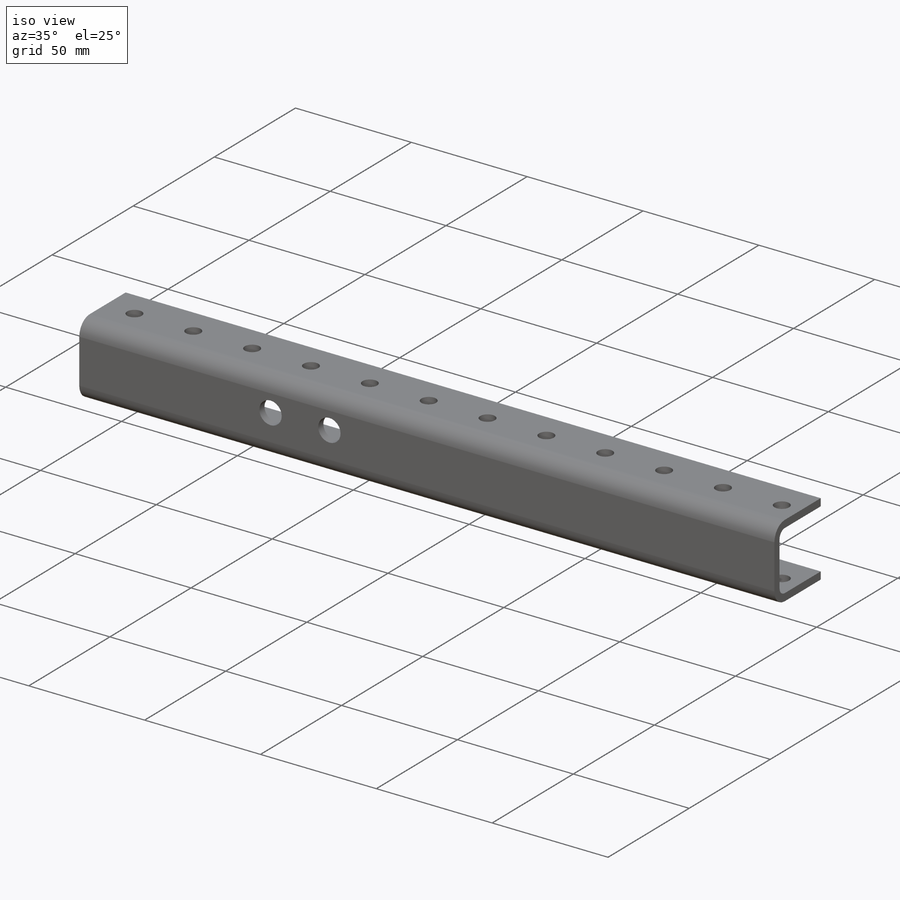
[diagram: iso view]
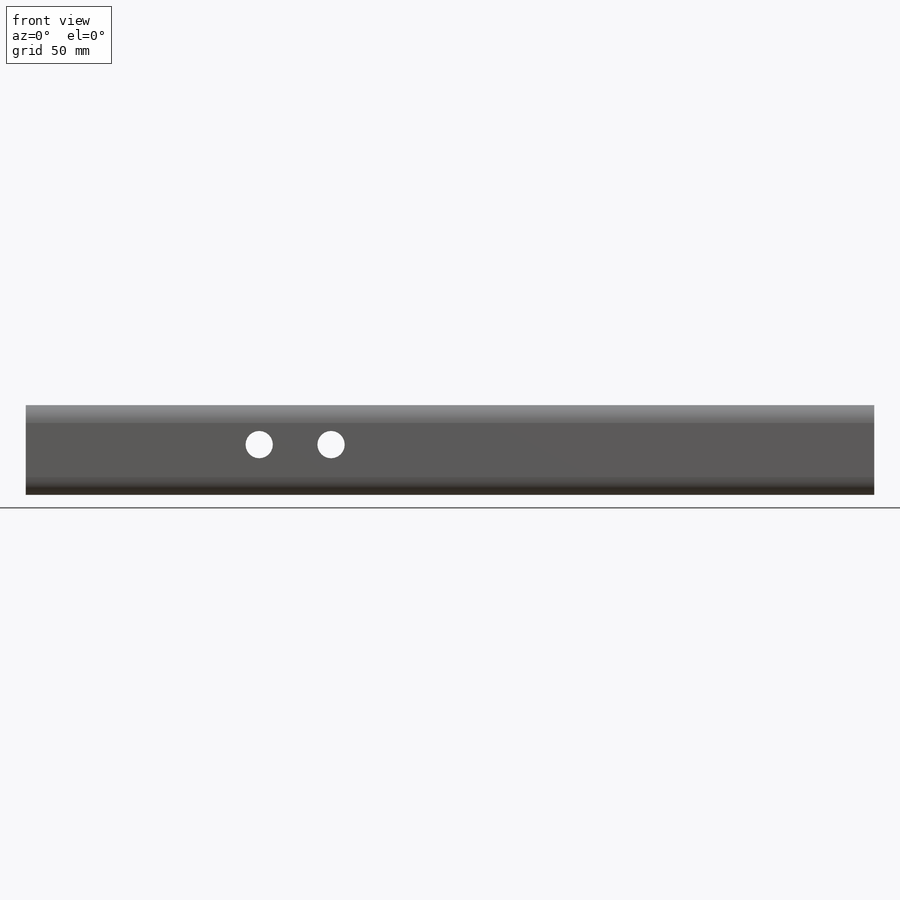
[diagram: front view]
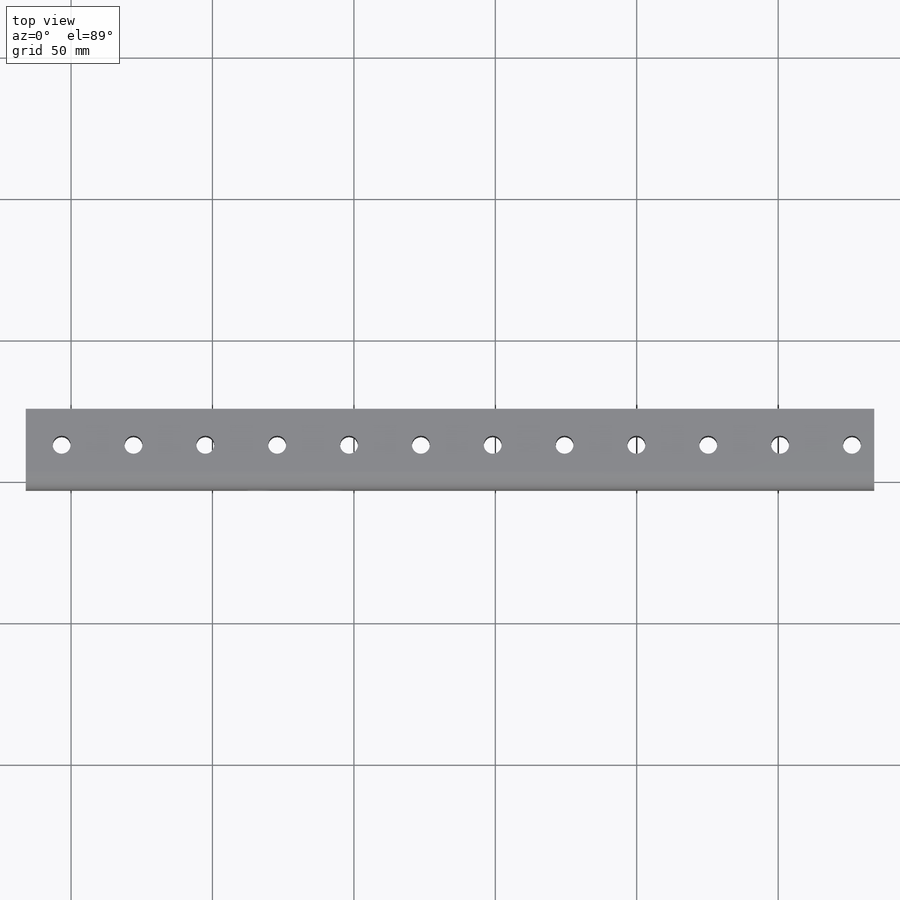
[diagram: top view]
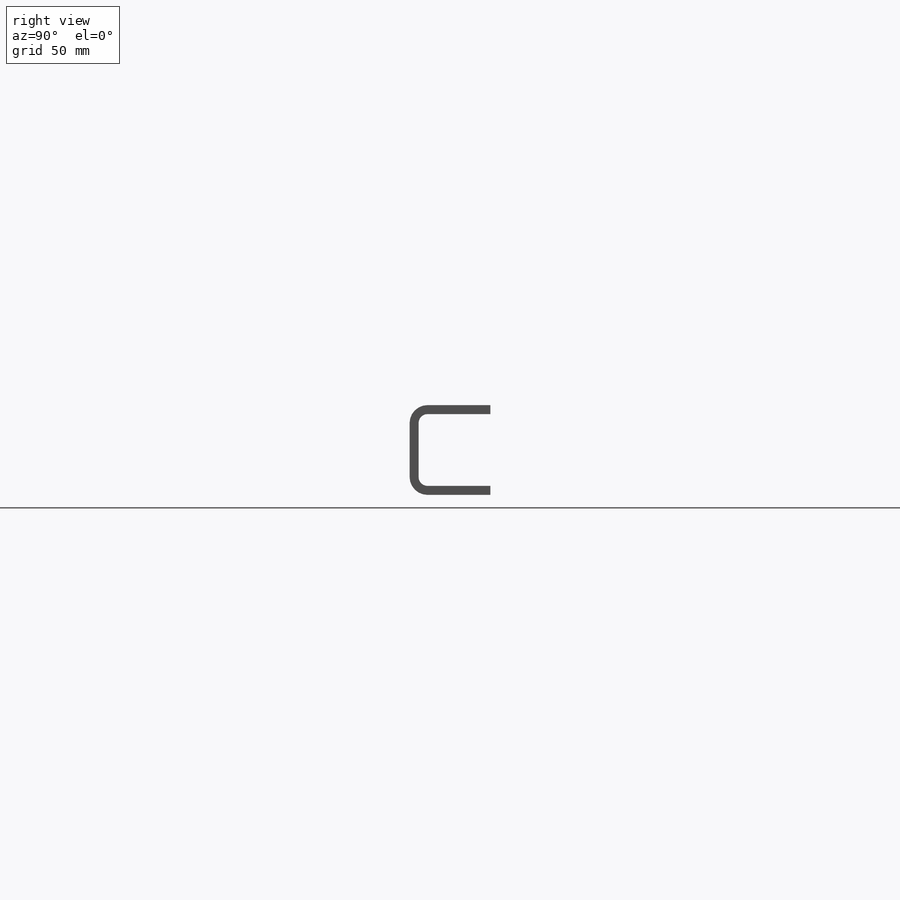
[diagram: right view]
SOLIDWORKS PART (.sldprt)
format: sldprt  version: not decoded by parser v0  size: 348,160 bytes
history: native  units: mm
features: sketch x19, hole x6, pattern_linear x4, fillet x4, cut_extrude x2, material x1, plane x1, extrude x1 (+13 scaffold rows collapsed)
feature tree (51):
  scaffold x13  (default folders/planes/origin — collapsed)
  material  "Material <not specified>"
  plane  "Plane1"  Offset=3.175mm
  sketch  "Sketch1"
  extrude  "Extrude1"  Depth=28.575mm
  sketch  "Sketch2"
  cut_extrude  "Extrude2"  Depth=889mm
  hole  "Hole1"  Diameter=6.35mm Depth=3.175mm
  sketch  "Sketch4"
  sketch  "Sketch3"  dims[Diameter=6.35mm Depth=3.175mm]
  sketch  "3DSketch1"
  pattern_linear  "LPattern1"  Count1=35 Count2=1 Spacing1=25.4mm Spacing2=25.4mm
  hole  "Hole2"  Diameter=9.652mm Depth=3.175mm
  sketch  "Sketch6"
  sketch  "Sketch5"  dims[Diameter=9.652mm Depth=3.175mm]
  sketch  "3DSketch2"
  pattern_linear  "LPattern2"  Count1=12 Count2=1 Spacing1=25.4mm Spacing2=25.4mm
  hole  "Hole3"  Diameter=9.652mm Depth=3.175mm
  sketch  "Sketch8"
  sketch  "Sketch7"  dims[Diameter=9.652mm Depth=3.175mm]
  hole  "Hole4"  Diameter=9.652mm Depth=3.175mm
  sketch  "Sketch10"
  sketch  "Sketch9"  dims[Diameter=9.652mm Depth=3.175mm]
  sketch  "3DSketch3"
  pattern_linear  "LPattern3"  Count1=12 Count2=1 Spacing1=25.4mm Spacing2=25.4mm
  hole  "Hole5"  Diameter=3.175mm Depth=3.175mm
  sketch  "Sketch12"
  sketch  "Sketch11"  dims[Diameter=3.175mm Depth=3.175mm]
  hole  "Hole6"  Diameter=6.35mm Depth=3.175mm
  sketch  "Sketch14"
  sketch  "Sketch13"  dims[Diameter=6.35mm Depth=3.175mm]
  sketch  "3DSketch4"
  pattern_linear  "LPattern4"  Count1=35 Count2=1 Spacing1=25.4mm Spacing2=25.4mm
  fillet  "Fillet1"  Radius=3.175mm
  fillet  "Fillet2"  Radius=3.175mm
  fillet  "Fillet3"  Radius=6.35mm
  fillet  "Fillet4"  Radius=6.35mm
  sketch  "Sketch15"  dims[D1=300.0mm]
  cut_extrude  "Cut-Extrude1"  Depth=77mm
decode coverage: 24 of 36 modeling features carry decoded parameters
summary: Diameter pulled from absorbed wizard sketch
note: suppression state not decoded; provenance and decode notes live in map.json
